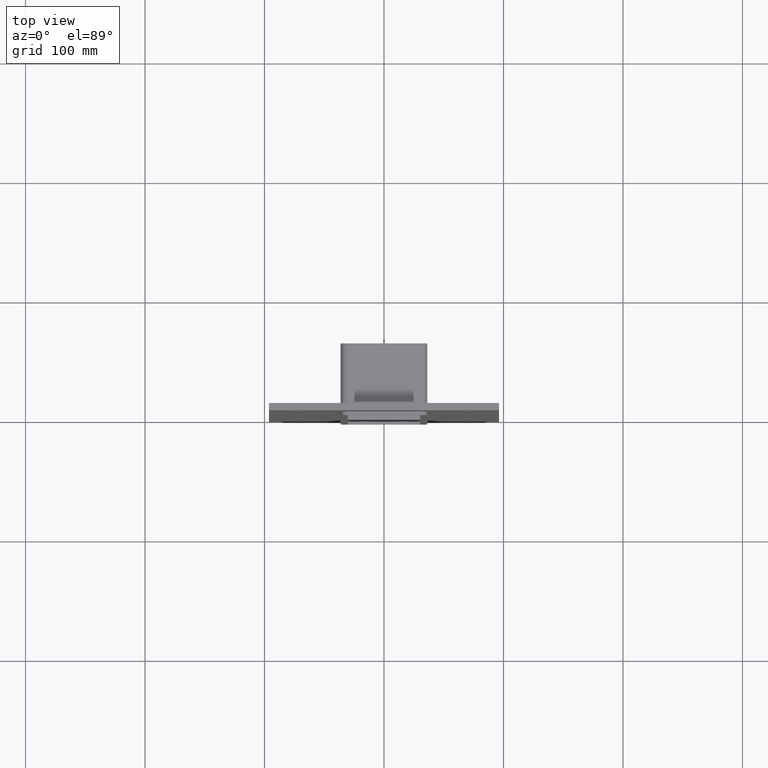
[diagram: clean part render]
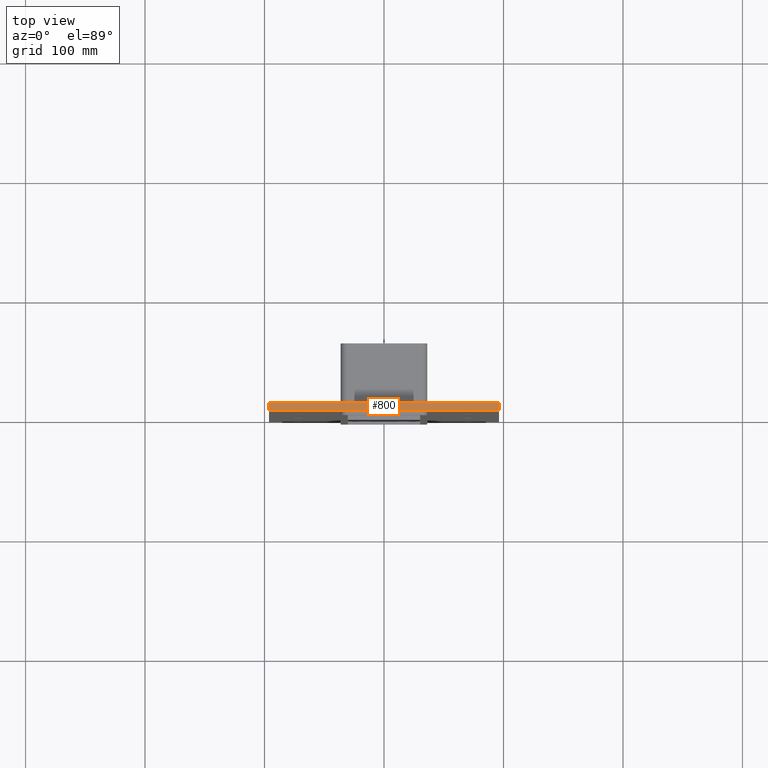
[diagram: same view with one face highlighted and labeled with its STEP entity id]
A machine part, top view. The second image highlights one B-rep face of the part: STEP entity #800.
In plain terms, the highlighted planar face has unit normal (0, 0, 1).
Its self-contained STEP definition (entity closure, byte-faithful):
#470=CARTESIAN_POINT('',(-96.25,6.000000000000001,289.0));
#471=VERTEX_POINT('',#470);
#472=CARTESIAN_POINT('',(96.25,6.000000000000001,289.0));
#473=VERTEX_POINT('',#472);
#474=CARTESIAN_POINT('',(-96.25,6.000000000000001,289.0));
#475=DIRECTION('',(1.0,0.0,0.0));
#476=VECTOR('',#475,192.5);
#477=LINE('',#474,#476);
#478=EDGE_CURVE('',#471,#473,#477,.T.);
#604=CARTESIAN_POINT('',(-96.25,0.0,289.0));
#605=VERTEX_POINT('',#604);
#606=CARTESIAN_POINT('',(96.249999999999986,0.0,289.0));
#607=VERTEX_POINT('',#606);
#608=CARTESIAN_POINT('',(-96.25,0.0,289.0));
#609=DIRECTION('',(1.0,0.0,0.0));
#610=VECTOR('',#609,192.5);
#611=LINE('',#608,#610);
#612=EDGE_CURVE('',#605,#607,#611,.T.);
#739=CARTESIAN_POINT('',(-96.25,0.0,289.0));
#740=DIRECTION('',(0.0,1.0,0.0));
#741=VECTOR('',#740,6.000000000000001);
#742=LINE('',#739,#741);
#743=EDGE_CURVE('',#605,#471,#742,.T.);
#780=CARTESIAN_POINT('',(96.249999999999986,0.0,289.0));
#781=DIRECTION('',(0.0,1.0,0.0));
#782=VECTOR('',#781,6.000000000000001);
#783=LINE('',#780,#782);
#784=EDGE_CURVE('',#607,#473,#783,.T.);
#789=CARTESIAN_POINT('',(-96.25,0.0,289.0));
#790=DIRECTION('',(0.0,0.0,1.0));
#791=DIRECTION('',(1.0,0.0,0.0));
#792=AXIS2_PLACEMENT_3D('',#789,#790,#791);
#793=PLANE('',#792);
#794=ORIENTED_EDGE('',*,*,#612,.T.);
#795=ORIENTED_EDGE('',*,*,#784,.T.);
#796=ORIENTED_EDGE('',*,*,#478,.F.);
#797=ORIENTED_EDGE('',*,*,#743,.F.);
#798=EDGE_LOOP('',(#794,#795,#796,#797));
#799=FACE_OUTER_BOUND('',#798,.T.);
#800=ADVANCED_FACE('',(#799),#793,.T.);